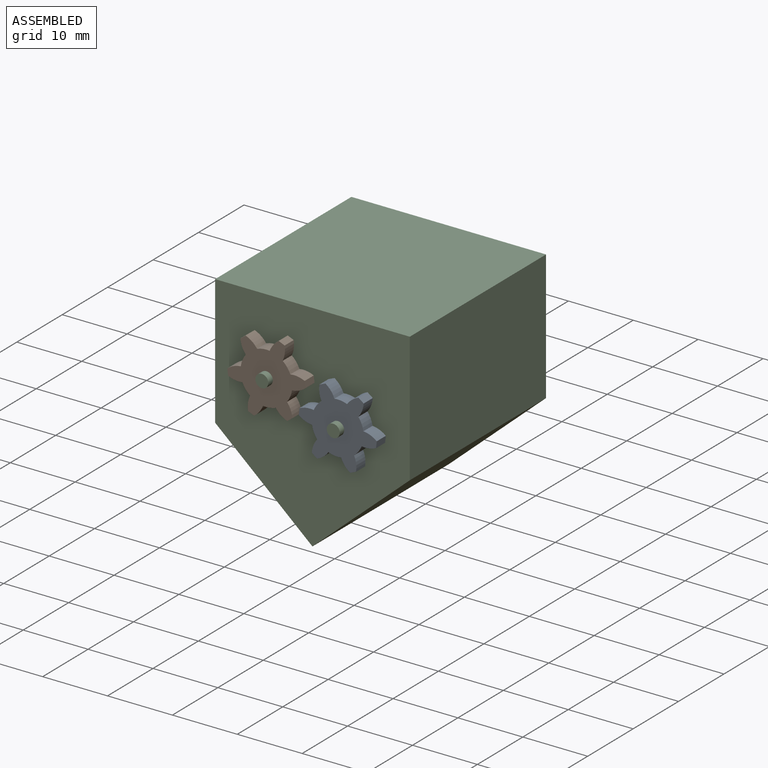
[diagram: assembled view]
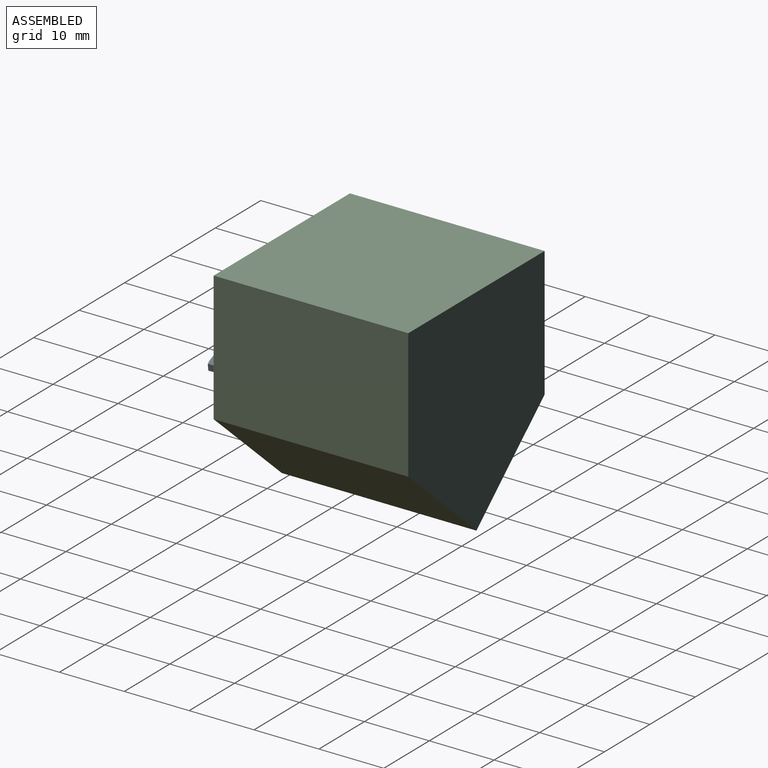
[diagram: assembled view, second angle]
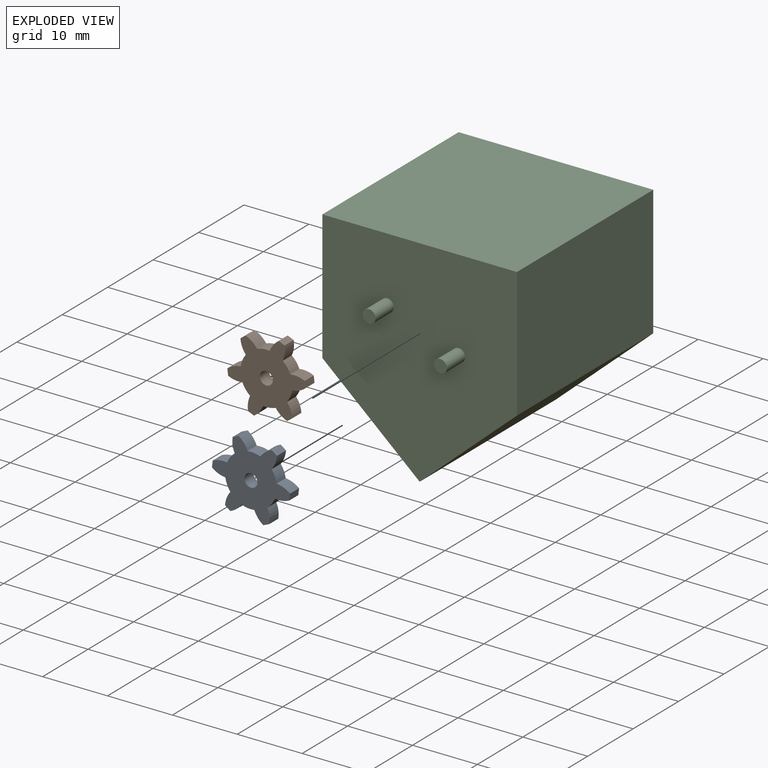
[diagram: exploded view]
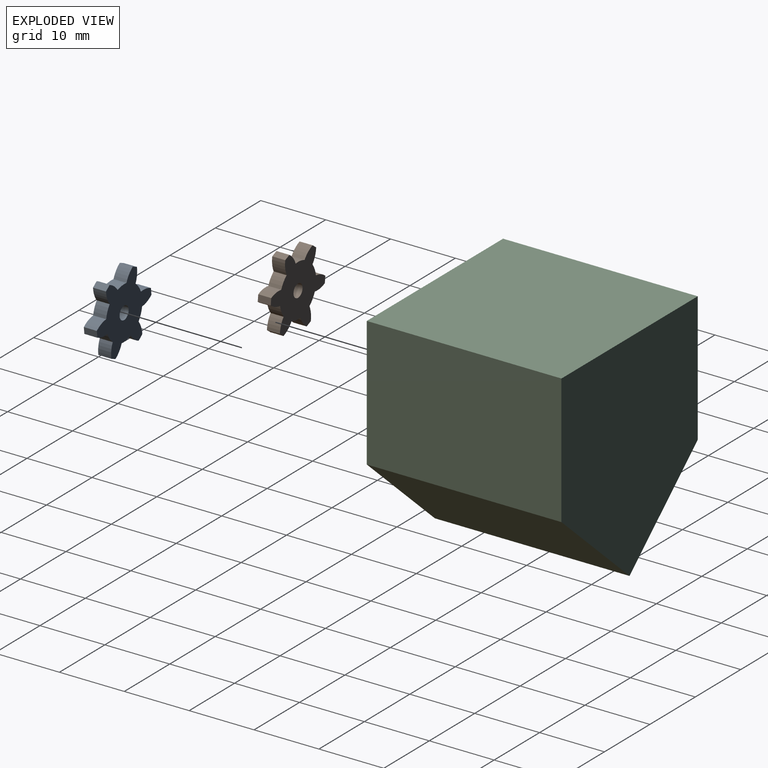
[diagram: exploded view, second angle]
ASSEMBLY  parts=3 mates=2
PART A: 27 faces, bbox 10.9x12x2 mm
  f0: cylinder r=3.69mm len=2.16mm, axis (0,0,-1), area 4.5mm2, adj f1,f23,f24,f25
  f1: cylinder r=4mm len=2mm, axis (0,0,-1), area 4mm2, adj f0,f2,f24,f25
  f2: cylinder r=3.69mm len=2.15mm, axis (0,0,-1), area 4.5mm2, adj f1,f3,f24,f25
  f3: plane 2x1mm, normal (0,1,0), area 2mm2, adj f2,f4,f24,f25
  f4: cylinder r=3.69mm len=2.15mm, axis (0,0,-1), area 4.5mm2, adj f3,f5,f24,f25
  f5: cylinder r=4mm len=2mm, axis (0,0,-1), area 4mm2, adj f4,f6,f24,f25
  f6: cylinder r=3.69mm len=2.16mm, axis (0,0,-1), area 4.5mm2, adj f5,f7,f24,f25
  f7: plane 2x0.87mm, normal (-0.87,0.5,0), area 2mm2, adj f6,f8,f24,f25
  f8: cylinder r=3.69mm len=2mm, axis (0,0,-1), area 4.5mm2, adj f7,f9,f24,f25
  f9: cylinder r=4mm len=2mm, axis (0,0,-1), area 4mm2, adj f8,f10,f24,f25
  f10: cylinder r=3.69mm len=2mm, axis (0,0,-1), area 4.5mm2, adj f9,f11,f24,f25
  f11: plane 2x0.87mm, normal (-0.87,-0.5,0), area 2mm2, adj f10,f12,f24,f25
  f12: cylinder r=3.69mm len=2.16mm, axis (0,0,-1), area 4.5mm2, adj f11,f13,f24,f25
  f13: cylinder r=4mm len=2mm, axis (0,0,-1), area 4mm2, adj f12,f14,f24,f25
  f14: cylinder r=3.69mm len=2.15mm, axis (0,0,-1), area 4.5mm2, adj f13,f15,f24,f25
  f15: plane 2x1mm, normal (0,-1,0), area 2mm2, adj f14,f16,f24,f25
  f16: cylinder r=3.69mm len=2.15mm, axis (0,0,-1), area 4.5mm2, adj f15,f17,f24,f25
  f17: cylinder r=4mm len=2mm, axis (0,0,-1), area 4mm2, adj f16,f18,f24,f25
  f18: cylinder r=3.69mm len=2.16mm, axis (0,0,-1), area 4.5mm2, adj f17,f19,f24,f25
  f19: plane 2x0.87mm, normal (0.87,-0.5,0), area 2mm2, adj f18,f20,f24,f25
  f20: cylinder r=3.69mm len=2mm, axis (0,0,-1), area 4.5mm2, adj f19,f21,f24,f25
  f21: cylinder r=4mm len=2mm, axis (0,0,-1), area 4mm2, adj f20,f22,f24,f25
  f22: cylinder r=3.69mm len=2mm, axis (0,0,-1), area 4.5mm2, adj f21,f23,f24,f25
  f23: plane 2x0.87mm, normal (0.87,0.5,0), area 2mm2, adj f0,f22,f24,f25
  f24: plane 12x10.89mm, normal (0,0,1), area 69.4mm2, adj f0,f1,f2,f3,f4,f5,f6,f7
  f25: plane 12x10.89mm, normal (0,0,-1), area 69.4mm2, adj f0,f1,f2,f3,f4,f5,f6,f7
  f26: cylinder r=1mm len=2mm, axis (0,0,1), area 12.6mm2, adj f24,f25
PART B: same geometry as A
PART C: 11 faces, bbox 30x34x33.2 mm
  f0: plane 30x15mm, normal (0.66,0,-0.75), area 600mm2, adj f1,f4,f5,f6
  f1: plane 30x20mm, normal (1,0,0), area 600mm2, adj f0,f2,f5,f6
  f2: plane 30x30mm, normal (0,0,1), area 900mm2, adj f1,f3,f5,f6
  f3: plane 30x20mm, normal (-1,0,0), area 600mm2, adj f2,f4,f5,f6
  f4: plane 30x15mm, normal (-0.66,0,-0.75), area 600mm2, adj f0,f3,f5,f6
  f5: plane 33.23x30mm, normal (0,-1,0), area 792.1mm2, adj f0,f1,f2,f3,f4,f7,f9
  f6: plane 33.23x30mm, normal (0,1,0), area 798.4mm2, adj f0,f1,f2,f3,f4
  f7: cylinder r=1mm len=4mm, axis (0,1,0), area 25.1mm2, adj f5,f8
  f8: plane 2x2mm, normal (0,-1,0), area 3.1mm2, adj f7
  f9: cylinder r=1mm len=4mm, axis (0,1,0), area 25.1mm2, adj f5,f10
  f10: plane 2x2mm, normal (0,-1,0), area 3.1mm2, adj f9
PLACE A rot(axis=(0.14,0.7,-0.7),163.7deg) t=(2.64,-11.09,9.9)mm
PLACE B rot(axis=(0.14,-0.7,0.7),163.7deg) t=(-8.36,-11.09,13.9)mm
PLACE C t=(-3.36,-0.09,3.9)mm fixed
MATE revolute C.f9 <-> A.f1  axis (0,1,0) through (2.64,-12.09,9.9)mm
MATE revolute C.f7 <-> B.f1  axis (0,1,0) through (-8.36,-12.09,13.9)mm
